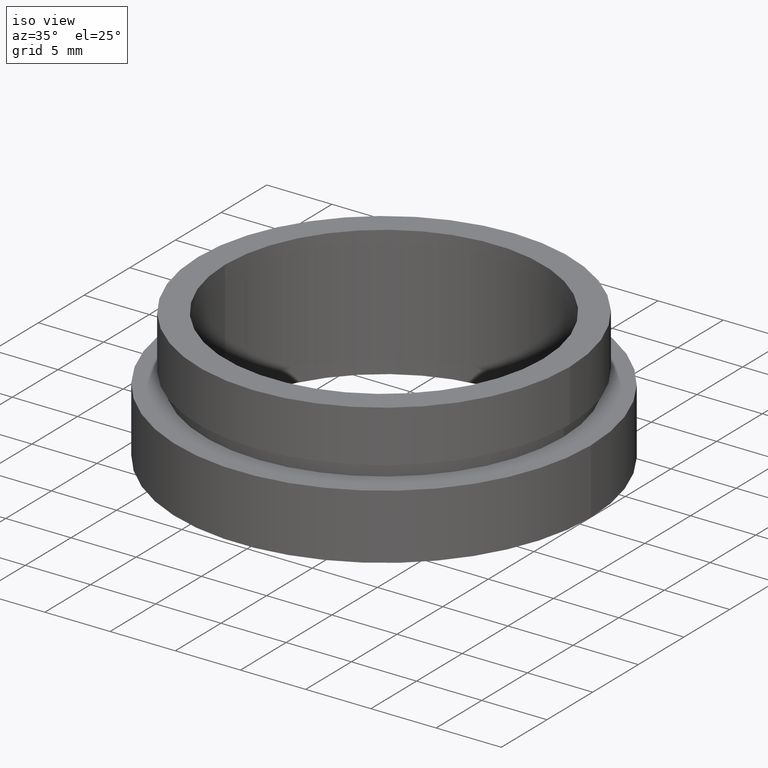
[diagram: clean part render]
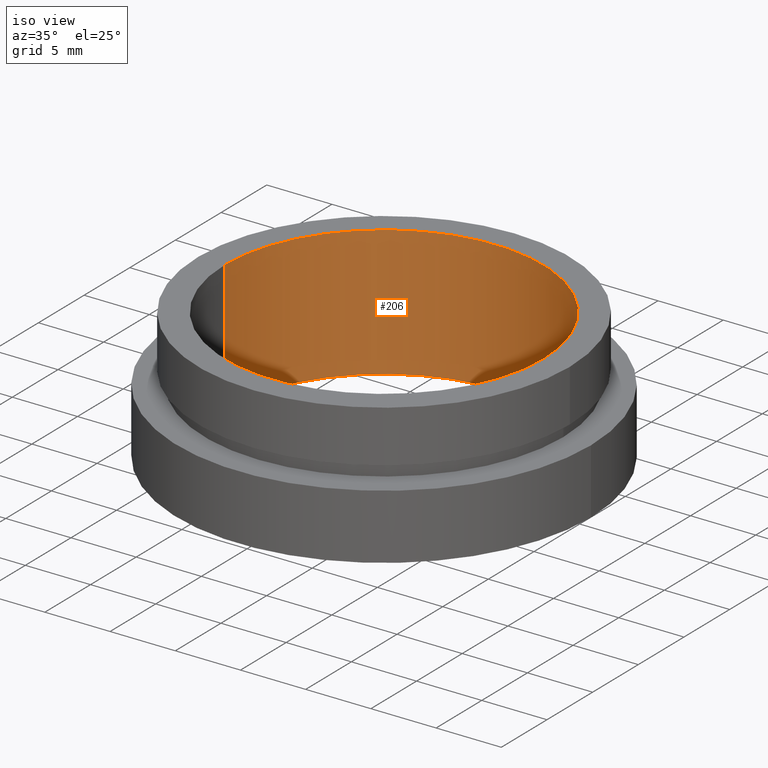
[diagram: tour spotlight — one face highlighted and labeled with its STEP entity id]
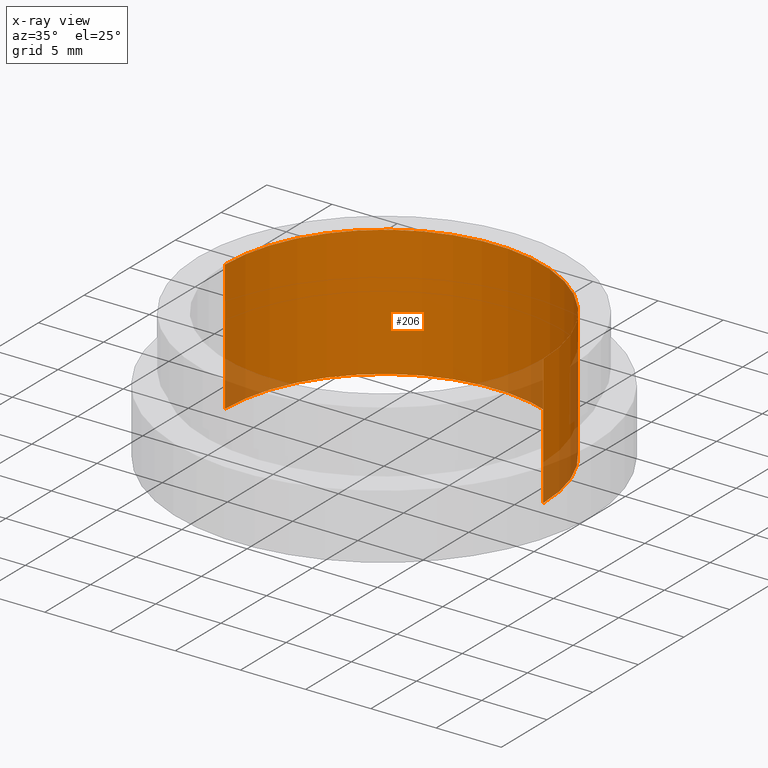
[diagram: x-ray of the same camera — body ghosted, this tour face saturated]
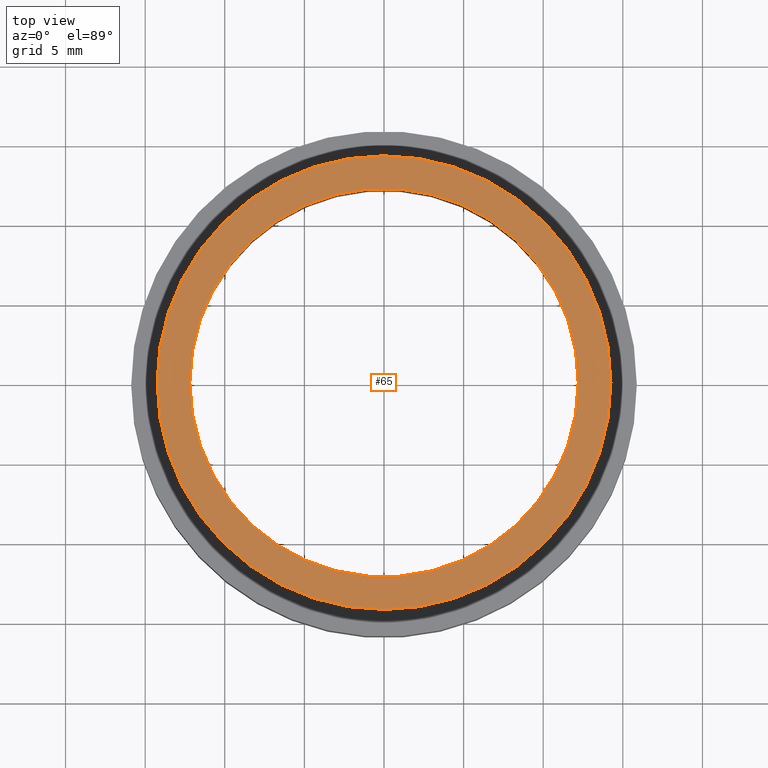
[diagram: tour spotlight — one face highlighted and labeled with its STEP entity id]
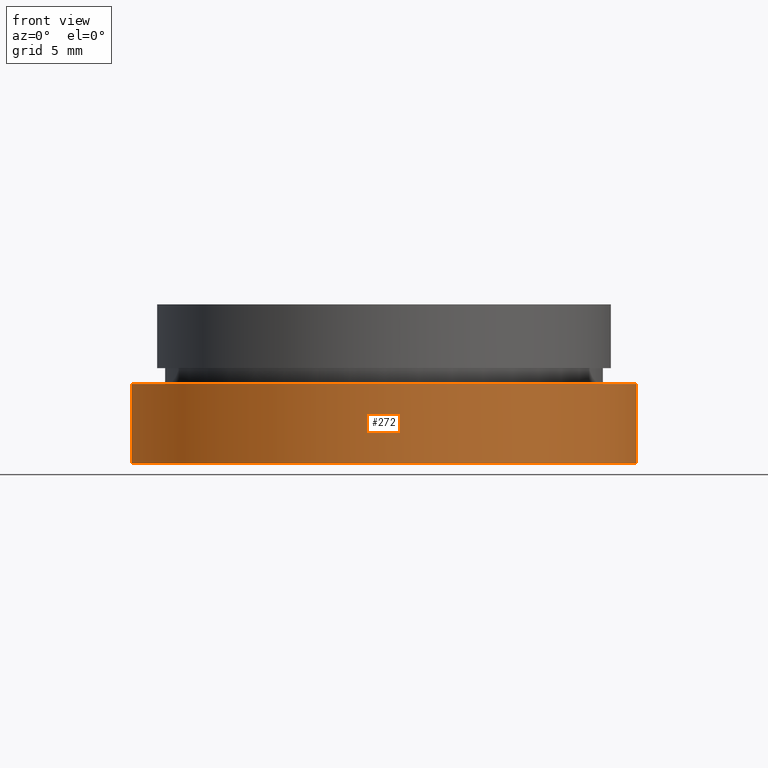
[diagram: tour spotlight — one face highlighted and labeled with its STEP entity id]
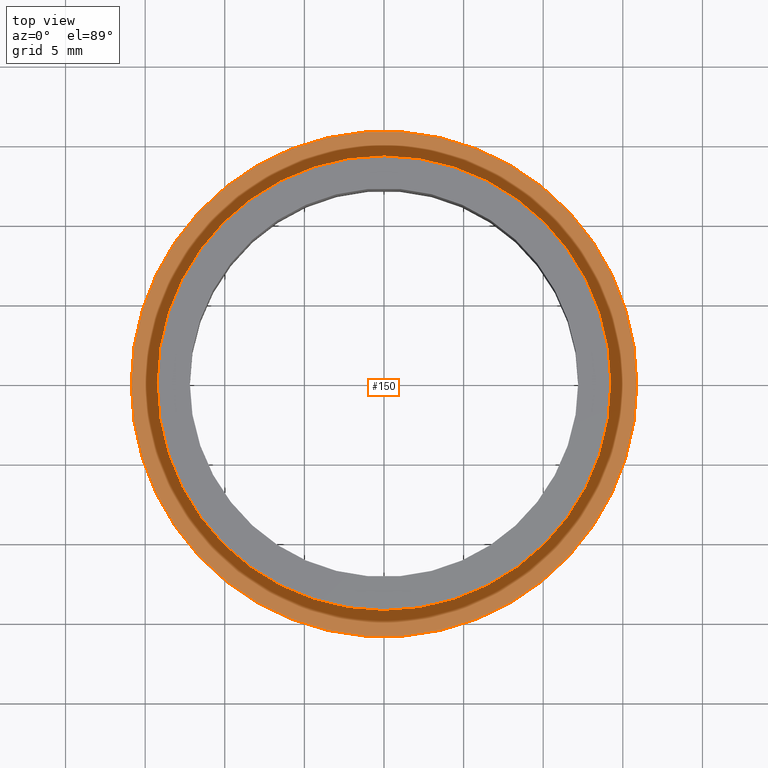
[diagram: tour spotlight — one face highlighted and labeled with its STEP entity id]
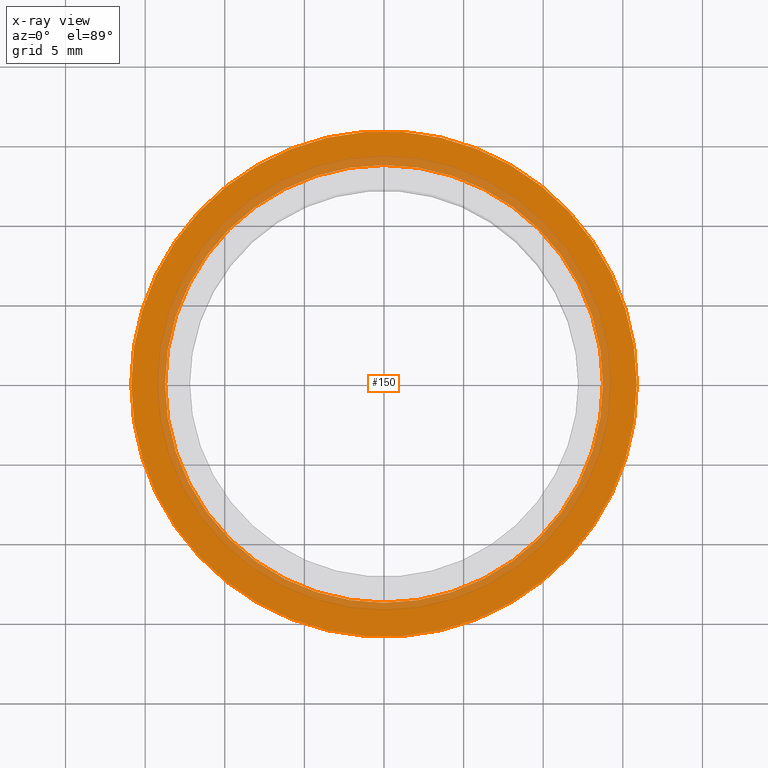
[diagram: x-ray of the same camera — body ghosted, this tour face saturated]
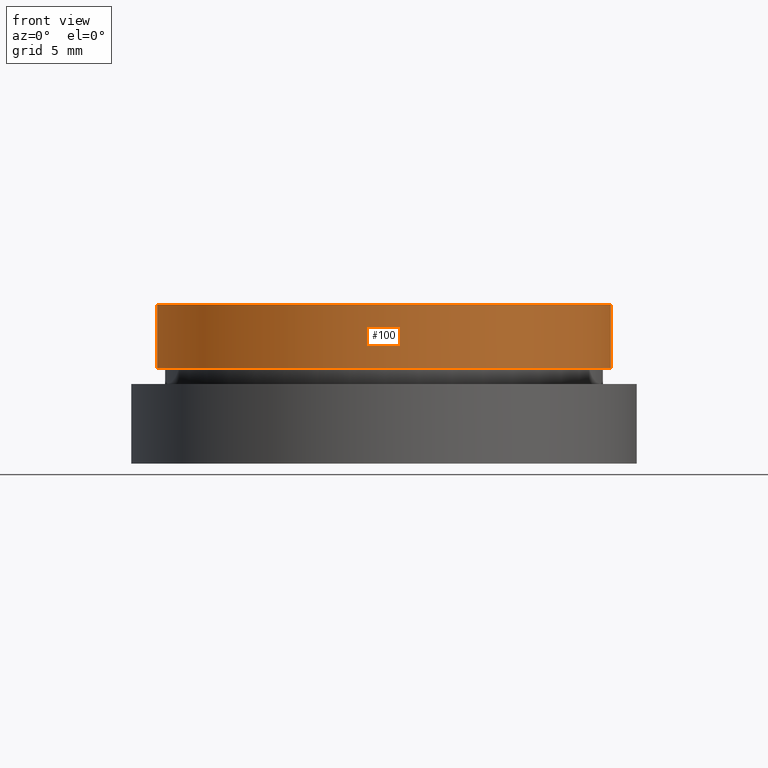
[diagram: tour spotlight — one face highlighted and labeled with its STEP entity id]
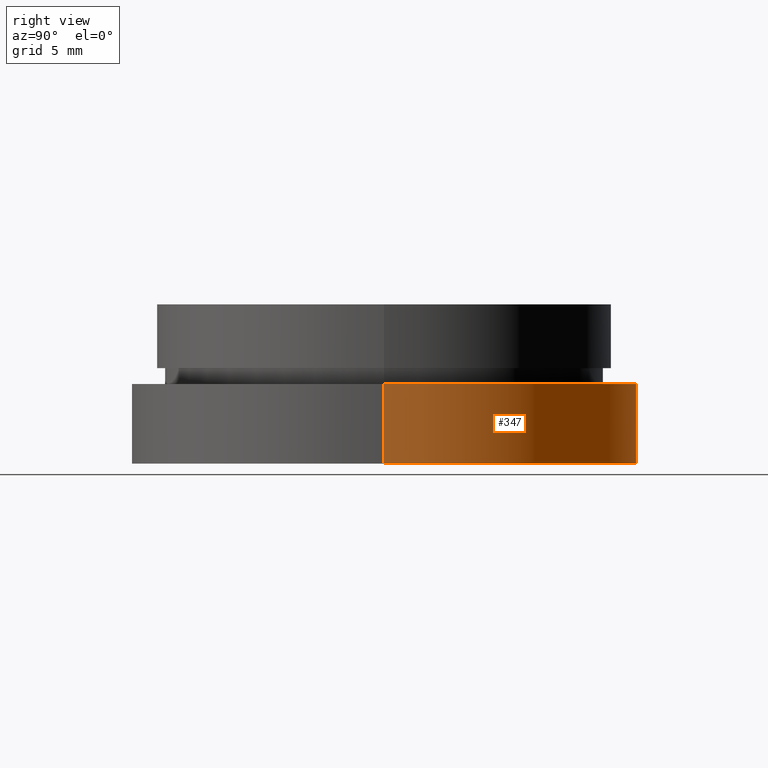
[diagram: tour spotlight — one face highlighted and labeled with its STEP entity id]
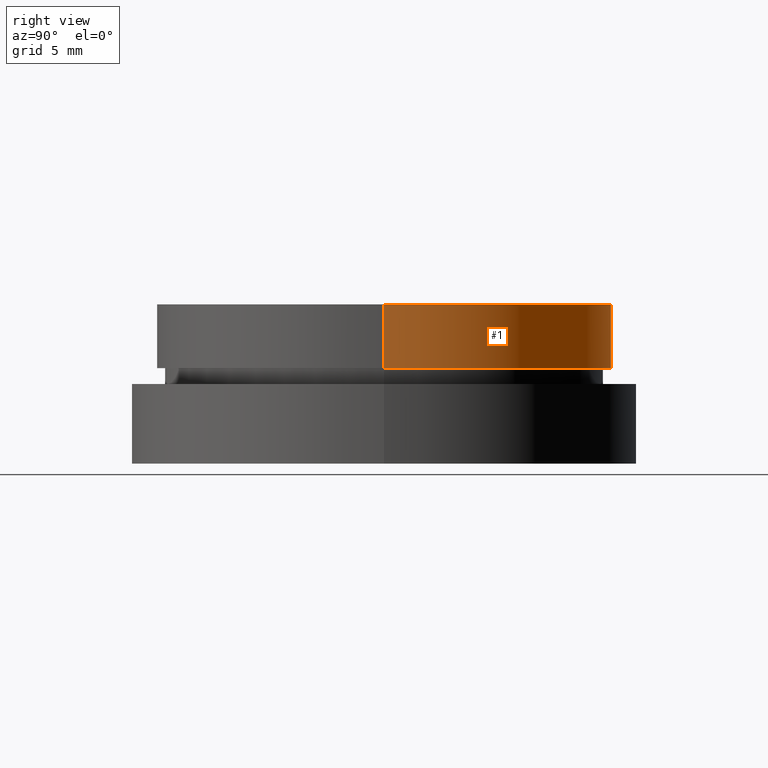
[diagram: tour spotlight — one face highlighted and labeled with its STEP entity id]
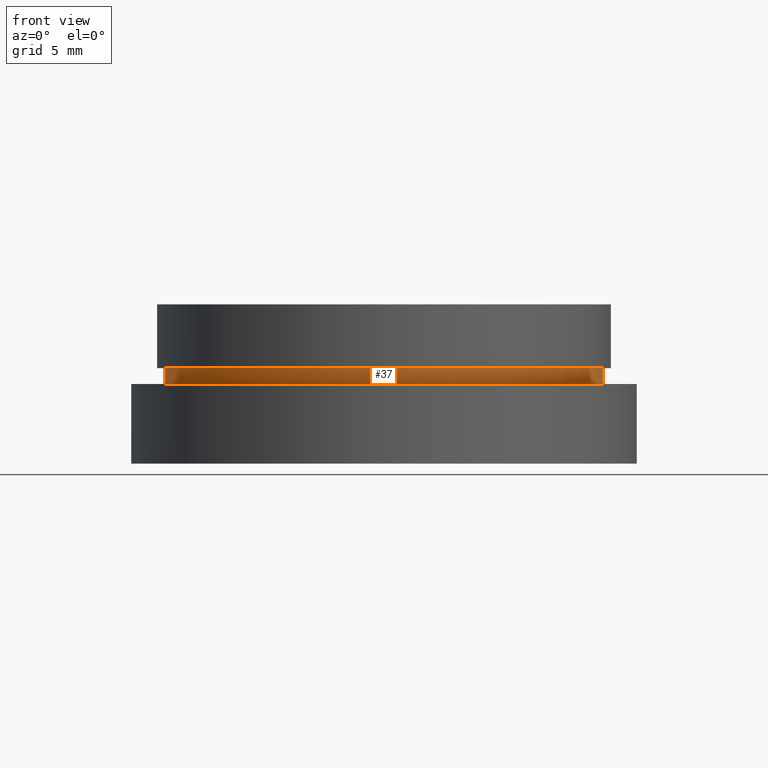
[diagram: tour spotlight — one face highlighted and labeled with its STEP entity id]
A machine part: a face-by-face anatomy tour. The part has 12 B-rep faces; the first image is the clean iso view, then the 8 largest visible faces are spotlighted one at a time (largest first), each with its STEP entity span.

Face 1 — iso view, entity #206. An x-ray twin of the same camera follows (body ghosted, this face saturated) — the face is partly hidden behind the body. In plain terms, the highlighted cylindrical surface (partial cylindrical patch) has radius 12.2 mm, axis along (-0, -0, -1).
Definition (entity closure, byte-faithful):
#11 = CARTESIAN_POINT ( 'NONE',  ( 12.20000000000000100, 1.494069094959771100E-015, -19.14057971014493000 ) ) ;
#31 = CYLINDRICAL_SURFACE ( 'NONE', #36, 12.20000000000000100 ) ;
#33 = AXIS2_PLACEMENT_3D ( 'NONE', #75, #77, #338 ) ;
#36 = AXIS2_PLACEMENT_3D ( 'NONE', #134, #405, #135 ) ;
#41 = EDGE_LOOP ( 'NONE', ( #152, #271, #89, #101 ) ) ;
#71 = CARTESIAN_POINT ( 'NONE',  ( -12.20000000000000100, 0.0000000000000000000, -19.14057971014493000 ) ) ;
#75 = CARTESIAN_POINT ( 'NONE',  ( 0.0000000000000000000, 0.0000000000000000000, 0.0000000000000000000 ) ) ;
#77 = DIRECTION ( 'NONE',  ( -0.0000000000000000000, -0.0000000000000000000, -1.000000000000000000 ) ) ;
#80 = VERTEX_POINT ( 'NONE', #141 ) ;
#89 = ORIENTED_EDGE ( 'NONE', *, *, #207, .T. ) ;
#101 = ORIENTED_EDGE ( 'NONE', *, *, #199, .T. ) ;
#114 = VERTEX_POINT ( 'NONE', #145 ) ;
#120 = CARTESIAN_POINT ( 'NONE',  ( 12.20000000000000100, 1.494069094959771100E-015, 0.0000000000000000000 ) ) ;
#129 = CARTESIAN_POINT ( 'NONE',  ( -12.20000000000000100, 0.0000000000000000000, 0.0000000000000000000 ) ) ;
#132 = VERTEX_POINT ( 'NONE', #129 ) ;
#133 = VECTOR ( 'NONE', #178, 1000.000000000000000 ) ;
#134 = CARTESIAN_POINT ( 'NONE',  ( 0.0000000000000000000, 0.0000000000000000000, -19.14057971014493000 ) ) ;
#135 = DIRECTION ( 'NONE',  ( -1.000000000000000000, 0.0000000000000000000, 0.0000000000000000000 ) ) ;
#141 = CARTESIAN_POINT ( 'NONE',  ( 12.20000000000000100, 1.494069094959771100E-015, -10.00000000000000000 ) ) ;
#145 = CARTESIAN_POINT ( 'NONE',  ( -12.20000000000000100, 0.0000000000000000000, -10.00000000000000000 ) ) ;
#152 = ORIENTED_EDGE ( 'NONE', *, *, #294, .F. ) ;
#176 = CARTESIAN_POINT ( 'NONE',  ( 0.0000000000000000000, 0.0000000000000000000, -10.00000000000000000 ) ) ;
#178 = DIRECTION ( 'NONE',  ( -0.0000000000000000000, -0.0000000000000000000, -1.000000000000000000 ) ) ;
#199 = EDGE_CURVE ( 'NONE', #114, #80, #326, .T. ) ;
#206 = ADVANCED_FACE ( 'NONE', ( #309 ), #31, .F. ) ;
#207 = EDGE_CURVE ( 'NONE', #132, #114, #285, .T. ) ;
#241 = VERTEX_POINT ( 'NONE', #120 ) ;
#249 = DIRECTION ( 'NONE',  ( -1.000000000000000000, 0.0000000000000000000, 0.0000000000000000000 ) ) ;
#264 = EDGE_CURVE ( 'NONE', #132, #241, #317, .T. ) ;
#271 = ORIENTED_EDGE ( 'NONE', *, *, #264, .F. ) ;
#285 = LINE ( 'NONE', #71, #358 ) ;
#294 = EDGE_CURVE ( 'NONE', #241, #80, #348, .T. ) ;
#309 = FACE_OUTER_BOUND ( 'NONE', #41, .T. ) ;
#317 = CIRCLE ( 'NONE', #33, 12.20000000000000100 ) ;
#326 = CIRCLE ( 'NONE', #434, 12.20000000000000100 ) ;
#338 = DIRECTION ( 'NONE',  ( -1.000000000000000000, 0.0000000000000000000, 0.0000000000000000000 ) ) ;
#348 = LINE ( 'NONE', #11, #133 ) ;
#358 = VECTOR ( 'NONE', #417, 1000.000000000000000 ) ;
#388 = DIRECTION ( 'NONE',  ( -0.0000000000000000000, -0.0000000000000000000, -1.000000000000000000 ) ) ;
#405 = DIRECTION ( 'NONE',  ( -0.0000000000000000000, -0.0000000000000000000, -1.000000000000000000 ) ) ;
#417 = DIRECTION ( 'NONE',  ( -0.0000000000000000000, -0.0000000000000000000, -1.000000000000000000 ) ) ;
#434 = AXIS2_PLACEMENT_3D ( 'NONE', #176, #388, #249 ) ;

Face 2 — top view, entity #65. In plain terms, the highlighted planar face has unit normal (-0, 0, -1).
Definition (entity closure, byte-faithful):
#6 = ORIENTED_EDGE ( 'NONE', *, *, #264, .T. ) ;
#8 = CIRCLE ( 'NONE', #258, 14.25000000000000400 ) ;
#18 = CARTESIAN_POINT ( 'NONE',  ( 0.0000000000000000000, 0.0000000000000000000, 0.0000000000000000000 ) ) ;
#33 = AXIS2_PLACEMENT_3D ( 'NONE', #75, #77, #338 ) ;
#49 = DIRECTION ( 'NONE',  ( -1.000000000000000000, 0.0000000000000000000, 0.0000000000000000000 ) ) ;
#65 = ADVANCED_FACE ( 'NONE', ( #420, #290 ), #419, .F. ) ;
#69 = CIRCLE ( 'NONE', #232, 12.20000000000000100 ) ;
#75 = CARTESIAN_POINT ( 'NONE',  ( 0.0000000000000000000, 0.0000000000000000000, 0.0000000000000000000 ) ) ;
#77 = DIRECTION ( 'NONE',  ( -0.0000000000000000000, -0.0000000000000000000, -1.000000000000000000 ) ) ;
#92 = ORIENTED_EDGE ( 'NONE', *, *, #336, .T. ) ;
#116 = DIRECTION ( 'NONE',  ( -0.0000000000000000000, -0.0000000000000000000, -1.000000000000000000 ) ) ;
#120 = CARTESIAN_POINT ( 'NONE',  ( 12.20000000000000100, 1.494069094959771100E-015, 0.0000000000000000000 ) ) ;
#129 = CARTESIAN_POINT ( 'NONE',  ( -12.20000000000000100, 0.0000000000000000000, 0.0000000000000000000 ) ) ;
#130 = VERTEX_POINT ( 'NONE', #137 ) ;
#132 = VERTEX_POINT ( 'NONE', #129 ) ;
#137 = CARTESIAN_POINT ( 'NONE',  ( -14.25000000000000400, 0.0000000000000000000, 0.0000000000000000000 ) ) ;
#146 = EDGE_LOOP ( 'NONE', ( #221, #209 ) ) ;
#147 = AXIS2_PLACEMENT_3D ( 'NONE', #288, #240, #360 ) ;
#159 = DIRECTION ( 'NONE',  ( -0.0000000000000000000, -0.0000000000000000000, -1.000000000000000000 ) ) ;
#177 = DIRECTION ( 'NONE',  ( -0.0000000000000000000, 0.0000000000000000000, -1.000000000000000000 ) ) ;
#183 = CARTESIAN_POINT ( 'NONE',  ( 14.25000000000000400, 1.745121688784978600E-015, 0.0000000000000000000 ) ) ;
#202 = AXIS2_PLACEMENT_3D ( 'NONE', #403, #177, #231 ) ;
#204 = CIRCLE ( 'NONE', #147, 14.25000000000000400 ) ;
#209 = ORIENTED_EDGE ( 'NONE', *, *, #334, .F. ) ;
#217 = EDGE_CURVE ( 'NONE', #130, #261, #8, .T. ) ;
#221 = ORIENTED_EDGE ( 'NONE', *, *, #217, .F. ) ;
#231 = DIRECTION ( 'NONE',  ( -1.000000000000000000, 0.0000000000000000000, 0.0000000000000000000 ) ) ;
#232 = AXIS2_PLACEMENT_3D ( 'NONE', #18, #116, #368 ) ;
#240 = DIRECTION ( 'NONE',  ( -0.0000000000000000000, -0.0000000000000000000, -1.000000000000000000 ) ) ;
#241 = VERTEX_POINT ( 'NONE', #120 ) ;
#258 = AXIS2_PLACEMENT_3D ( 'NONE', #371, #159, #49 ) ;
#261 = VERTEX_POINT ( 'NONE', #183 ) ;
#264 = EDGE_CURVE ( 'NONE', #132, #241, #317, .T. ) ;
#288 = CARTESIAN_POINT ( 'NONE',  ( 0.0000000000000000000, 0.0000000000000000000, 0.0000000000000000000 ) ) ;
#290 = FACE_BOUND ( 'NONE', #292, .T. ) ;
#292 = EDGE_LOOP ( 'NONE', ( #6, #92 ) ) ;
#317 = CIRCLE ( 'NONE', #33, 12.20000000000000100 ) ;
#334 = EDGE_CURVE ( 'NONE', #261, #130, #204, .T. ) ;
#336 = EDGE_CURVE ( 'NONE', #241, #132, #69, .T. ) ;
#338 = DIRECTION ( 'NONE',  ( -1.000000000000000000, 0.0000000000000000000, 0.0000000000000000000 ) ) ;
#360 = DIRECTION ( 'NONE',  ( -1.000000000000000000, 0.0000000000000000000, 0.0000000000000000000 ) ) ;
#368 = DIRECTION ( 'NONE',  ( -1.000000000000000000, 0.0000000000000000000, 0.0000000000000000000 ) ) ;
#371 = CARTESIAN_POINT ( 'NONE',  ( 0.0000000000000000000, 0.0000000000000000000, 0.0000000000000000000 ) ) ;
#403 = CARTESIAN_POINT ( 'NONE',  ( 12.20000000000000100, 0.0000000000000000000, 0.0000000000000000000 ) ) ;
#419 = PLANE ( 'NONE',  #202 ) ;
#420 = FACE_OUTER_BOUND ( 'NONE', #146, .T. ) ;

Face 3 — front view, entity #272. In plain terms, the highlighted cylindrical surface (partial cylindrical patch) has radius 15.875 mm, axis along (-0, -0, -1).
Definition (entity closure, byte-faithful):
#15 = CARTESIAN_POINT ( 'NONE',  ( -15.87500000000000000, 0.0000000000000000000, -10.00000000000000000 ) ) ;
#17 = AXIS2_PLACEMENT_3D ( 'NONE', #297, #355, #237 ) ;
#39 = VERTEX_POINT ( 'NONE', #15 ) ;
#44 = ORIENTED_EDGE ( 'NONE', *, *, #399, .F. ) ;
#45 = ORIENTED_EDGE ( 'NONE', *, *, #386, .T. ) ;
#52 = CARTESIAN_POINT ( 'NONE',  ( 15.87500000000000000, 1.944126793646423200E-015, -10.00000000000000000 ) ) ;
#85 = DIRECTION ( 'NONE',  ( -1.000000000000000000, 0.0000000000000000000, 0.0000000000000000000 ) ) ;
#87 = EDGE_CURVE ( 'NONE', #391, #363, #414, .T. ) ;
#88 = LINE ( 'NONE', #375, #340 ) ;
#95 = DIRECTION ( 'NONE',  ( -0.0000000000000000000, -0.0000000000000000000, -1.000000000000000000 ) ) ;
#127 = DIRECTION ( 'NONE',  ( -0.0000000000000000000, -0.0000000000000000000, -1.000000000000000000 ) ) ;
#142 = CARTESIAN_POINT ( 'NONE',  ( 15.87500000000000000, 1.944126793646423200E-015, -5.000000000000000900 ) ) ;
#149 = LINE ( 'NONE', #301, #250 ) ;
#198 = DIRECTION ( 'NONE',  ( -0.0000000000000000000, -0.0000000000000000000, -1.000000000000000000 ) ) ;
#220 = EDGE_CURVE ( 'NONE', #391, #367, #88, .T. ) ;
#237 = DIRECTION ( 'NONE',  ( -1.000000000000000000, 0.0000000000000000000, 0.0000000000000000000 ) ) ;
#250 = VECTOR ( 'NONE', #198, 1000.000000000000000 ) ;
#272 = ADVANCED_FACE ( 'NONE', ( #279 ), #430, .T. ) ;
#279 = FACE_OUTER_BOUND ( 'NONE', #372, .T. ) ;
#286 = CARTESIAN_POINT ( 'NONE',  ( 0.0000000000000000000, 0.0000000000000000000, -10.00000000000000000 ) ) ;
#297 = CARTESIAN_POINT ( 'NONE',  ( 0.0000000000000000000, 0.0000000000000000000, -19.14057971014493000 ) ) ;
#301 = CARTESIAN_POINT ( 'NONE',  ( -15.87500000000000000, 0.0000000000000000000, -19.14057971014493000 ) ) ;
#340 = VECTOR ( 'NONE', #127, 1000.000000000000000 ) ;
#344 = AXIS2_PLACEMENT_3D ( 'NONE', #286, #389, #384 ) ;
#355 = DIRECTION ( 'NONE',  ( -0.0000000000000000000, -0.0000000000000000000, -1.000000000000000000 ) ) ;
#362 = CARTESIAN_POINT ( 'NONE',  ( -15.87500000000000000, 0.0000000000000000000, -5.000000000000000900 ) ) ;
#363 = VERTEX_POINT ( 'NONE', #362 ) ;
#367 = VERTEX_POINT ( 'NONE', #52 ) ;
#369 = CIRCLE ( 'NONE', #344, 15.87500000000000000 ) ;
#372 = EDGE_LOOP ( 'NONE', ( #413, #409, #45, #44 ) ) ;
#375 = CARTESIAN_POINT ( 'NONE',  ( 15.87500000000000000, 1.944126793646423200E-015, -19.14057971014493000 ) ) ;
#383 = AXIS2_PLACEMENT_3D ( 'NONE', #422, #95, #85 ) ;
#384 = DIRECTION ( 'NONE',  ( -1.000000000000000000, 0.0000000000000000000, 0.0000000000000000000 ) ) ;
#386 = EDGE_CURVE ( 'NONE', #363, #39, #149, .T. ) ;
#389 = DIRECTION ( 'NONE',  ( -0.0000000000000000000, -0.0000000000000000000, -1.000000000000000000 ) ) ;
#391 = VERTEX_POINT ( 'NONE', #142 ) ;
#399 = EDGE_CURVE ( 'NONE', #367, #39, #369, .T. ) ;
#409 = ORIENTED_EDGE ( 'NONE', *, *, #87, .T. ) ;
#413 = ORIENTED_EDGE ( 'NONE', *, *, #220, .F. ) ;
#414 = CIRCLE ( 'NONE', #383, 15.87500000000000000 ) ;
#422 = CARTESIAN_POINT ( 'NONE',  ( 0.0000000000000000000, 0.0000000000000000000, -5.000000000000000900 ) ) ;
#430 = CYLINDRICAL_SURFACE ( 'NONE', #17, 15.87500000000000000 ) ;

Face 4 — top view, entity #150. An x-ray twin of the same camera follows (body ghosted, this face saturated) — the face is partly hidden behind the body. In plain terms, the highlighted planar face has unit normal (-0, 0, -1).
Definition (entity closure, byte-faithful):
#3 = CARTESIAN_POINT ( 'NONE',  ( 13.75000000000000400, 1.683889348827611200E-015, -5.000000000000000900 ) ) ;
#22 = VERTEX_POINT ( 'NONE', #3 ) ;
#23 = FACE_BOUND ( 'NONE', #214, .T. ) ;
#34 = CARTESIAN_POINT ( 'NONE',  ( 13.75000000000000400, 0.0000000000000000000, -5.000000000000000000 ) ) ;
#43 = AXIS2_PLACEMENT_3D ( 'NONE', #274, #128, #323 ) ;
#81 = CIRCLE ( 'NONE', #412, 13.75000000000000400 ) ;
#85 = DIRECTION ( 'NONE',  ( -1.000000000000000000, 0.0000000000000000000, 0.0000000000000000000 ) ) ;
#87 = EDGE_CURVE ( 'NONE', #391, #363, #414, .T. ) ;
#95 = DIRECTION ( 'NONE',  ( -0.0000000000000000000, -0.0000000000000000000, -1.000000000000000000 ) ) ;
#103 = EDGE_CURVE ( 'NONE', #363, #391, #402, .T. ) ;
#118 = CARTESIAN_POINT ( 'NONE',  ( 0.0000000000000000000, 0.0000000000000000000, -5.000000000000000900 ) ) ;
#119 = CARTESIAN_POINT ( 'NONE',  ( -13.75000000000000400, 0.0000000000000000000, -5.000000000000000900 ) ) ;
#121 = VERTEX_POINT ( 'NONE', #119 ) ;
#128 = DIRECTION ( 'NONE',  ( -0.0000000000000000000, -0.0000000000000000000, -1.000000000000000000 ) ) ;
#136 = EDGE_CURVE ( 'NONE', #22, #121, #81, .T. ) ;
#142 = CARTESIAN_POINT ( 'NONE',  ( 15.87500000000000000, 1.944126793646423200E-015, -5.000000000000000900 ) ) ;
#150 = ADVANCED_FACE ( 'NONE', ( #239, #23 ), #342, .F. ) ;
#191 = CARTESIAN_POINT ( 'NONE',  ( 0.0000000000000000000, 0.0000000000000000000, -5.000000000000000900 ) ) ;
#214 = EDGE_LOOP ( 'NONE', ( #428, #426 ) ) ;
#215 = ORIENTED_EDGE ( 'NONE', *, *, #103, .F. ) ;
#236 = DIRECTION ( 'NONE',  ( -1.000000000000000000, 0.0000000000000000000, 0.0000000000000000000 ) ) ;
#239 = FACE_OUTER_BOUND ( 'NONE', #366, .T. ) ;
#244 = DIRECTION ( 'NONE',  ( -0.0000000000000000000, -0.0000000000000000000, -1.000000000000000000 ) ) ;
#251 = DIRECTION ( 'NONE',  ( -1.000000000000000000, 0.0000000000000000000, 0.0000000000000000000 ) ) ;
#274 = CARTESIAN_POINT ( 'NONE',  ( 0.0000000000000000000, 0.0000000000000000000, -5.000000000000000900 ) ) ;
#295 = DIRECTION ( 'NONE',  ( -0.0000000000000000000, -0.0000000000000000000, -1.000000000000000000 ) ) ;
#314 = AXIS2_PLACEMENT_3D ( 'NONE', #34, #319, #236 ) ;
#319 = DIRECTION ( 'NONE',  ( -0.0000000000000000000, 0.0000000000000000000, -1.000000000000000000 ) ) ;
#323 = DIRECTION ( 'NONE',  ( -1.000000000000000000, 0.0000000000000000000, 0.0000000000000000000 ) ) ;
#330 = CIRCLE ( 'NONE', #373, 13.75000000000000400 ) ;
#342 = PLANE ( 'NONE',  #314 ) ;
#362 = CARTESIAN_POINT ( 'NONE',  ( -15.87500000000000000, 0.0000000000000000000, -5.000000000000000900 ) ) ;
#363 = VERTEX_POINT ( 'NONE', #362 ) ;
#366 = EDGE_LOOP ( 'NONE', ( #215, #404 ) ) ;
#373 = AXIS2_PLACEMENT_3D ( 'NONE', #191, #295, #410 ) ;
#374 = EDGE_CURVE ( 'NONE', #121, #22, #330, .T. ) ;
#383 = AXIS2_PLACEMENT_3D ( 'NONE', #422, #95, #85 ) ;
#391 = VERTEX_POINT ( 'NONE', #142 ) ;
#402 = CIRCLE ( 'NONE', #43, 15.87500000000000000 ) ;
#404 = ORIENTED_EDGE ( 'NONE', *, *, #87, .F. ) ;
#410 = DIRECTION ( 'NONE',  ( -1.000000000000000000, 0.0000000000000000000, 0.0000000000000000000 ) ) ;
#412 = AXIS2_PLACEMENT_3D ( 'NONE', #118, #244, #251 ) ;
#414 = CIRCLE ( 'NONE', #383, 15.87500000000000000 ) ;
#422 = CARTESIAN_POINT ( 'NONE',  ( 0.0000000000000000000, 0.0000000000000000000, -5.000000000000000900 ) ) ;
#426 = ORIENTED_EDGE ( 'NONE', *, *, #136, .T. ) ;
#428 = ORIENTED_EDGE ( 'NONE', *, *, #374, .T. ) ;

Face 5 — front view, entity #100. In plain terms, the highlighted cylindrical surface (partial cylindrical patch) has radius 14.25 mm, axis along (-0, -0, -1).
Definition (entity closure, byte-faithful):
#9 = ORIENTED_EDGE ( 'NONE', *, *, #334, .T. ) ;
#25 = LINE ( 'NONE', #352, #423 ) ;
#27 = ORIENTED_EDGE ( 'NONE', *, *, #162, .T. ) ;
#28 = DIRECTION ( 'NONE',  ( -0.0000000000000000000, -0.0000000000000000000, -1.000000000000000000 ) ) ;
#47 = CARTESIAN_POINT ( 'NONE',  ( -14.25000000000000400, 0.0000000000000000000, -19.14057971014493000 ) ) ;
#84 = DIRECTION ( 'NONE',  ( -1.000000000000000000, 0.0000000000000000000, 0.0000000000000000000 ) ) ;
#96 = CARTESIAN_POINT ( 'NONE',  ( 14.25000000000000400, 1.745121688784978600E-015, -4.000000000000000000 ) ) ;
#100 = ADVANCED_FACE ( 'NONE', ( #376 ), #357, .T. ) ;
#102 = DIRECTION ( 'NONE',  ( -0.0000000000000000000, -0.0000000000000000000, -1.000000000000000000 ) ) ;
#113 = DIRECTION ( 'NONE',  ( -0.0000000000000000000, -0.0000000000000000000, -1.000000000000000000 ) ) ;
#130 = VERTEX_POINT ( 'NONE', #137 ) ;
#137 = CARTESIAN_POINT ( 'NONE',  ( -14.25000000000000400, 0.0000000000000000000, 0.0000000000000000000 ) ) ;
#139 = ORIENTED_EDGE ( 'NONE', *, *, #300, .F. ) ;
#147 = AXIS2_PLACEMENT_3D ( 'NONE', #288, #240, #360 ) ;
#162 = EDGE_CURVE ( 'NONE', #130, #196, #284, .T. ) ;
#166 = AXIS2_PLACEMENT_3D ( 'NONE', #353, #113, #84 ) ;
#183 = CARTESIAN_POINT ( 'NONE',  ( 14.25000000000000400, 1.745121688784978600E-015, 0.0000000000000000000 ) ) ;
#196 = VERTEX_POINT ( 'NONE', #247 ) ;
#204 = CIRCLE ( 'NONE', #147, 14.25000000000000400 ) ;
#210 = EDGE_LOOP ( 'NONE', ( #139, #9, #27, #222 ) ) ;
#222 = ORIENTED_EDGE ( 'NONE', *, *, #329, .F. ) ;
#240 = DIRECTION ( 'NONE',  ( -0.0000000000000000000, -0.0000000000000000000, -1.000000000000000000 ) ) ;
#247 = CARTESIAN_POINT ( 'NONE',  ( -14.25000000000000400, 0.0000000000000000000, -4.000000000000000000 ) ) ;
#261 = VERTEX_POINT ( 'NONE', #183 ) ;
#265 = CARTESIAN_POINT ( 'NONE',  ( 0.0000000000000000000, 0.0000000000000000000, -19.14057971014493000 ) ) ;
#266 = DIRECTION ( 'NONE',  ( -1.000000000000000000, 0.0000000000000000000, 0.0000000000000000000 ) ) ;
#282 = AXIS2_PLACEMENT_3D ( 'NONE', #265, #359, #266 ) ;
#284 = LINE ( 'NONE', #47, #378 ) ;
#288 = CARTESIAN_POINT ( 'NONE',  ( 0.0000000000000000000, 0.0000000000000000000, 0.0000000000000000000 ) ) ;
#300 = EDGE_CURVE ( 'NONE', #261, #387, #25, .T. ) ;
#329 = EDGE_CURVE ( 'NONE', #387, #196, #335, .T. ) ;
#334 = EDGE_CURVE ( 'NONE', #261, #130, #204, .T. ) ;
#335 = CIRCLE ( 'NONE', #166, 14.25000000000000400 ) ;
#352 = CARTESIAN_POINT ( 'NONE',  ( 14.25000000000000400, 1.745121688784978600E-015, -19.14057971014493000 ) ) ;
#353 = CARTESIAN_POINT ( 'NONE',  ( 0.0000000000000000000, 0.0000000000000000000, -4.000000000000000000 ) ) ;
#357 = CYLINDRICAL_SURFACE ( 'NONE', #282, 14.25000000000000400 ) ;
#359 = DIRECTION ( 'NONE',  ( -0.0000000000000000000, -0.0000000000000000000, -1.000000000000000000 ) ) ;
#360 = DIRECTION ( 'NONE',  ( -1.000000000000000000, 0.0000000000000000000, 0.0000000000000000000 ) ) ;
#376 = FACE_OUTER_BOUND ( 'NONE', #210, .T. ) ;
#378 = VECTOR ( 'NONE', #102, 1000.000000000000000 ) ;
#387 = VERTEX_POINT ( 'NONE', #96 ) ;
#423 = VECTOR ( 'NONE', #28, 1000.000000000000000 ) ;

Face 6 — right view, entity #347. In plain terms, the highlighted cylindrical surface (partial cylindrical patch) has radius 15.875 mm, axis along (-0, -0, -1).
Definition (entity closure, byte-faithful):
#15 = CARTESIAN_POINT ( 'NONE',  ( -15.87500000000000000, 0.0000000000000000000, -10.00000000000000000 ) ) ;
#16 = EDGE_LOOP ( 'NONE', ( #151, #156, #163, #170 ) ) ;
#20 = DIRECTION ( 'NONE',  ( -1.000000000000000000, 0.0000000000000000000, 0.0000000000000000000 ) ) ;
#39 = VERTEX_POINT ( 'NONE', #15 ) ;
#43 = AXIS2_PLACEMENT_3D ( 'NONE', #274, #128, #323 ) ;
#52 = CARTESIAN_POINT ( 'NONE',  ( 15.87500000000000000, 1.944126793646423200E-015, -10.00000000000000000 ) ) ;
#57 = DIRECTION ( 'NONE',  ( -0.0000000000000000000, -0.0000000000000000000, -1.000000000000000000 ) ) ;
#63 = EDGE_CURVE ( 'NONE', #39, #367, #229, .T. ) ;
#88 = LINE ( 'NONE', #375, #340 ) ;
#103 = EDGE_CURVE ( 'NONE', #363, #391, #402, .T. ) ;
#127 = DIRECTION ( 'NONE',  ( -0.0000000000000000000, -0.0000000000000000000, -1.000000000000000000 ) ) ;
#128 = DIRECTION ( 'NONE',  ( -0.0000000000000000000, -0.0000000000000000000, -1.000000000000000000 ) ) ;
#142 = CARTESIAN_POINT ( 'NONE',  ( 15.87500000000000000, 1.944126793646423200E-015, -5.000000000000000900 ) ) ;
#149 = LINE ( 'NONE', #301, #250 ) ;
#151 = ORIENTED_EDGE ( 'NONE', *, *, #103, .T. ) ;
#156 = ORIENTED_EDGE ( 'NONE', *, *, #220, .T. ) ;
#163 = ORIENTED_EDGE ( 'NONE', *, *, #63, .F. ) ;
#170 = ORIENTED_EDGE ( 'NONE', *, *, #386, .F. ) ;
#197 = AXIS2_PLACEMENT_3D ( 'NONE', #325, #57, #322 ) ;
#198 = DIRECTION ( 'NONE',  ( -0.0000000000000000000, -0.0000000000000000000, -1.000000000000000000 ) ) ;
#220 = EDGE_CURVE ( 'NONE', #391, #367, #88, .T. ) ;
#229 = CIRCLE ( 'NONE', #281, 15.87500000000000000 ) ;
#250 = VECTOR ( 'NONE', #198, 1000.000000000000000 ) ;
#274 = CARTESIAN_POINT ( 'NONE',  ( 0.0000000000000000000, 0.0000000000000000000, -5.000000000000000900 ) ) ;
#277 = CARTESIAN_POINT ( 'NONE',  ( 0.0000000000000000000, 0.0000000000000000000, -10.00000000000000000 ) ) ;
#281 = AXIS2_PLACEMENT_3D ( 'NONE', #277, #291, #20 ) ;
#291 = DIRECTION ( 'NONE',  ( -0.0000000000000000000, -0.0000000000000000000, -1.000000000000000000 ) ) ;
#301 = CARTESIAN_POINT ( 'NONE',  ( -15.87500000000000000, 0.0000000000000000000, -19.14057971014493000 ) ) ;
#310 = CYLINDRICAL_SURFACE ( 'NONE', #197, 15.87500000000000000 ) ;
#312 = FACE_OUTER_BOUND ( 'NONE', #16, .T. ) ;
#322 = DIRECTION ( 'NONE',  ( -1.000000000000000000, 0.0000000000000000000, 0.0000000000000000000 ) ) ;
#323 = DIRECTION ( 'NONE',  ( -1.000000000000000000, 0.0000000000000000000, 0.0000000000000000000 ) ) ;
#325 = CARTESIAN_POINT ( 'NONE',  ( 0.0000000000000000000, 0.0000000000000000000, -19.14057971014493000 ) ) ;
#340 = VECTOR ( 'NONE', #127, 1000.000000000000000 ) ;
#347 = ADVANCED_FACE ( 'NONE', ( #312 ), #310, .T. ) ;
#362 = CARTESIAN_POINT ( 'NONE',  ( -15.87500000000000000, 0.0000000000000000000, -5.000000000000000900 ) ) ;
#363 = VERTEX_POINT ( 'NONE', #362 ) ;
#367 = VERTEX_POINT ( 'NONE', #52 ) ;
#375 = CARTESIAN_POINT ( 'NONE',  ( 15.87500000000000000, 1.944126793646423200E-015, -19.14057971014493000 ) ) ;
#386 = EDGE_CURVE ( 'NONE', #363, #39, #149, .T. ) ;
#391 = VERTEX_POINT ( 'NONE', #142 ) ;
#402 = CIRCLE ( 'NONE', #43, 15.87500000000000000 ) ;

Face 7 — right view, entity #1. In plain terms, the highlighted cylindrical surface (partial cylindrical patch) has radius 14.25 mm, axis along (-0, -0, -1).
Definition (entity closure, byte-faithful):
#1 = ADVANCED_FACE ( 'NONE', ( #73 ), #62, .T. ) ;
#8 = CIRCLE ( 'NONE', #258, 14.25000000000000400 ) ;
#25 = LINE ( 'NONE', #352, #423 ) ;
#28 = DIRECTION ( 'NONE',  ( -0.0000000000000000000, -0.0000000000000000000, -1.000000000000000000 ) ) ;
#47 = CARTESIAN_POINT ( 'NONE',  ( -14.25000000000000400, 0.0000000000000000000, -19.14057971014493000 ) ) ;
#49 = DIRECTION ( 'NONE',  ( -1.000000000000000000, 0.0000000000000000000, 0.0000000000000000000 ) ) ;
#62 = CYLINDRICAL_SURFACE ( 'NONE', #411, 14.25000000000000400 ) ;
#73 = FACE_OUTER_BOUND ( 'NONE', #104, .T. ) ;
#96 = CARTESIAN_POINT ( 'NONE',  ( 14.25000000000000400, 1.745121688784978600E-015, -4.000000000000000000 ) ) ;
#102 = DIRECTION ( 'NONE',  ( -0.0000000000000000000, -0.0000000000000000000, -1.000000000000000000 ) ) ;
#104 = EDGE_LOOP ( 'NONE', ( #171, #181, #200, #219 ) ) ;
#107 = DIRECTION ( 'NONE',  ( -0.0000000000000000000, -0.0000000000000000000, -1.000000000000000000 ) ) ;
#112 = DIRECTION ( 'NONE',  ( -0.0000000000000000000, -0.0000000000000000000, -1.000000000000000000 ) ) ;
#130 = VERTEX_POINT ( 'NONE', #137 ) ;
#137 = CARTESIAN_POINT ( 'NONE',  ( -14.25000000000000400, 0.0000000000000000000, 0.0000000000000000000 ) ) ;
#159 = DIRECTION ( 'NONE',  ( -0.0000000000000000000, -0.0000000000000000000, -1.000000000000000000 ) ) ;
#162 = EDGE_CURVE ( 'NONE', #130, #196, #284, .T. ) ;
#171 = ORIENTED_EDGE ( 'NONE', *, *, #217, .T. ) ;
#181 = ORIENTED_EDGE ( 'NONE', *, *, #300, .T. ) ;
#183 = CARTESIAN_POINT ( 'NONE',  ( 14.25000000000000400, 1.745121688784978600E-015, 0.0000000000000000000 ) ) ;
#186 = CARTESIAN_POINT ( 'NONE',  ( 0.0000000000000000000, 0.0000000000000000000, -4.000000000000000000 ) ) ;
#187 = DIRECTION ( 'NONE',  ( -1.000000000000000000, 0.0000000000000000000, 0.0000000000000000000 ) ) ;
#188 = AXIS2_PLACEMENT_3D ( 'NONE', #186, #107, #187 ) ;
#196 = VERTEX_POINT ( 'NONE', #247 ) ;
#200 = ORIENTED_EDGE ( 'NONE', *, *, #253, .F. ) ;
#217 = EDGE_CURVE ( 'NONE', #130, #261, #8, .T. ) ;
#219 = ORIENTED_EDGE ( 'NONE', *, *, #162, .F. ) ;
#247 = CARTESIAN_POINT ( 'NONE',  ( -14.25000000000000400, 0.0000000000000000000, -4.000000000000000000 ) ) ;
#253 = EDGE_CURVE ( 'NONE', #196, #387, #380, .T. ) ;
#258 = AXIS2_PLACEMENT_3D ( 'NONE', #371, #159, #49 ) ;
#261 = VERTEX_POINT ( 'NONE', #183 ) ;
#284 = LINE ( 'NONE', #47, #378 ) ;
#300 = EDGE_CURVE ( 'NONE', #261, #387, #25, .T. ) ;
#350 = DIRECTION ( 'NONE',  ( -1.000000000000000000, 0.0000000000000000000, 0.0000000000000000000 ) ) ;
#352 = CARTESIAN_POINT ( 'NONE',  ( 14.25000000000000400, 1.745121688784978600E-015, -19.14057971014493000 ) ) ;
#371 = CARTESIAN_POINT ( 'NONE',  ( 0.0000000000000000000, 0.0000000000000000000, 0.0000000000000000000 ) ) ;
#378 = VECTOR ( 'NONE', #102, 1000.000000000000000 ) ;
#380 = CIRCLE ( 'NONE', #188, 14.25000000000000400 ) ;
#387 = VERTEX_POINT ( 'NONE', #96 ) ;
#411 = AXIS2_PLACEMENT_3D ( 'NONE', #433, #112, #350 ) ;
#423 = VECTOR ( 'NONE', #28, 1000.000000000000000 ) ;
#433 = CARTESIAN_POINT ( 'NONE',  ( 0.0000000000000000000, 0.0000000000000000000, -19.14057971014493000 ) ) ;

Face 8 — front view, entity #37. In plain terms, the highlighted cylindrical surface (partial cylindrical patch) has radius 13.75 mm, axis along (-0, -0, -1).
Definition (entity closure, byte-faithful):
#3 = CARTESIAN_POINT ( 'NONE',  ( 13.75000000000000400, 1.683889348827611200E-015, -5.000000000000000900 ) ) ;
#22 = VERTEX_POINT ( 'NONE', #3 ) ;
#32 = EDGE_CURVE ( 'NONE', #361, #99, #381, .T. ) ;
#37 = ADVANCED_FACE ( 'NONE', ( #226 ), #234, .T. ) ;
#42 = AXIS2_PLACEMENT_3D ( 'NONE', #245, #97, #418 ) ;
#61 = DIRECTION ( 'NONE',  ( -0.0000000000000000000, -0.0000000000000000000, -1.000000000000000000 ) ) ;
#81 = CIRCLE ( 'NONE', #412, 13.75000000000000400 ) ;
#83 = VECTOR ( 'NONE', #304, 1000.000000000000000 ) ;
#94 = ORIENTED_EDGE ( 'NONE', *, *, #356, .T. ) ;
#97 = DIRECTION ( 'NONE',  ( -0.0000000000000000000, -0.0000000000000000000, -1.000000000000000000 ) ) ;
#99 = VERTEX_POINT ( 'NONE', #224 ) ;
#118 = CARTESIAN_POINT ( 'NONE',  ( 0.0000000000000000000, 0.0000000000000000000, -5.000000000000000900 ) ) ;
#119 = CARTESIAN_POINT ( 'NONE',  ( -13.75000000000000400, 0.0000000000000000000, -5.000000000000000900 ) ) ;
#121 = VERTEX_POINT ( 'NONE', #119 ) ;
#126 = DIRECTION ( 'NONE',  ( -1.000000000000000000, 0.0000000000000000000, 0.0000000000000000000 ) ) ;
#136 = EDGE_CURVE ( 'NONE', #22, #121, #81, .T. ) ;
#154 = LINE ( 'NONE', #218, #83 ) ;
#182 = LINE ( 'NONE', #223, #318 ) ;
#190 = EDGE_LOOP ( 'NONE', ( #392, #208, #94, #429 ) ) ;
#208 = ORIENTED_EDGE ( 'NONE', *, *, #32, .T. ) ;
#211 = DIRECTION ( 'NONE',  ( -0.0000000000000000000, -0.0000000000000000000, -1.000000000000000000 ) ) ;
#213 = AXIS2_PLACEMENT_3D ( 'NONE', #324, #61, #126 ) ;
#218 = CARTESIAN_POINT ( 'NONE',  ( 13.75000000000000400, 1.683889348827611200E-015, -19.14057971014493000 ) ) ;
#223 = CARTESIAN_POINT ( 'NONE',  ( -13.75000000000000400, 0.0000000000000000000, -19.14057971014493000 ) ) ;
#224 = CARTESIAN_POINT ( 'NONE',  ( -13.75000000000000400, 0.0000000000000000000, -4.000000000000000000 ) ) ;
#226 = FACE_OUTER_BOUND ( 'NONE', #190, .T. ) ;
#234 = CYLINDRICAL_SURFACE ( 'NONE', #213, 13.75000000000000400 ) ;
#244 = DIRECTION ( 'NONE',  ( -0.0000000000000000000, -0.0000000000000000000, -1.000000000000000000 ) ) ;
#245 = CARTESIAN_POINT ( 'NONE',  ( 0.0000000000000000000, 0.0000000000000000000, -4.000000000000000000 ) ) ;
#251 = DIRECTION ( 'NONE',  ( -1.000000000000000000, 0.0000000000000000000, 0.0000000000000000000 ) ) ;
#304 = DIRECTION ( 'NONE',  ( -0.0000000000000000000, -0.0000000000000000000, -1.000000000000000000 ) ) ;
#318 = VECTOR ( 'NONE', #211, 1000.000000000000000 ) ;
#324 = CARTESIAN_POINT ( 'NONE',  ( 0.0000000000000000000, 0.0000000000000000000, -19.14057971014493000 ) ) ;
#356 = EDGE_CURVE ( 'NONE', #99, #121, #182, .T. ) ;
#361 = VERTEX_POINT ( 'NONE', #424 ) ;
#381 = CIRCLE ( 'NONE', #42, 13.75000000000000400 ) ;
#392 = ORIENTED_EDGE ( 'NONE', *, *, #406, .F. ) ;
#406 = EDGE_CURVE ( 'NONE', #361, #22, #154, .T. ) ;
#412 = AXIS2_PLACEMENT_3D ( 'NONE', #118, #244, #251 ) ;
#418 = DIRECTION ( 'NONE',  ( -1.000000000000000000, 0.0000000000000000000, 0.0000000000000000000 ) ) ;
#424 = CARTESIAN_POINT ( 'NONE',  ( 13.75000000000000400, 1.683889348827611200E-015, -4.000000000000000000 ) ) ;
#429 = ORIENTED_EDGE ( 'NONE', *, *, #136, .F. ) ;